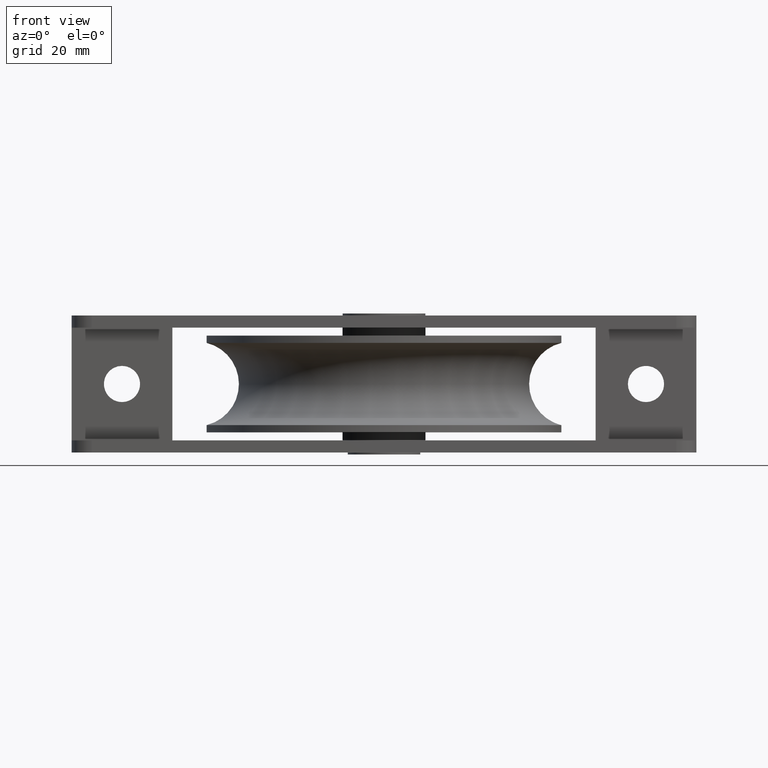
[diagram: clean part render]
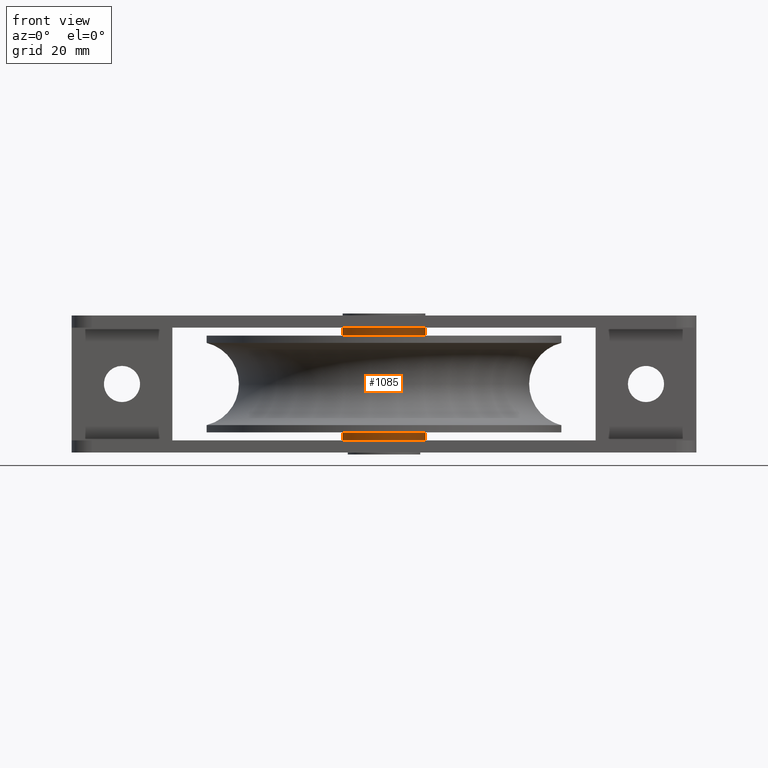
[diagram: same view with one face highlighted and labeled with its STEP entity id]
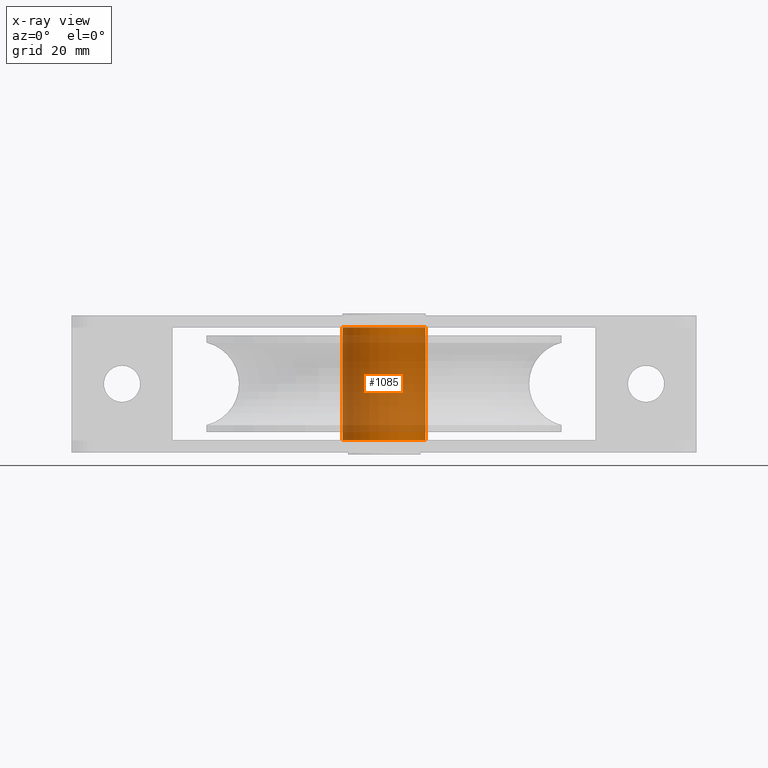
[diagram: x-ray of the same camera — body ghosted, the highlighted face saturated]
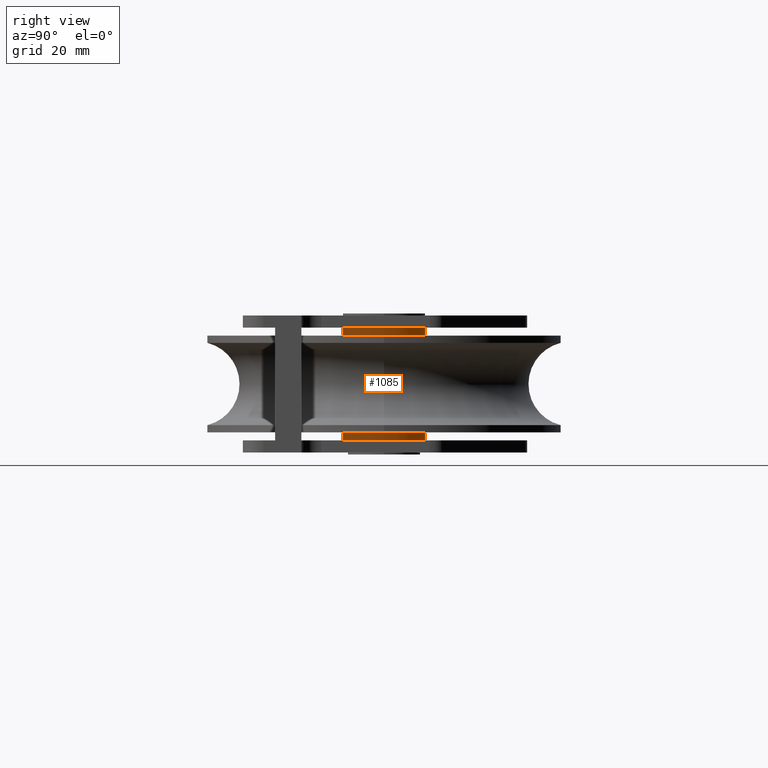
[diagram: same view with one face highlighted and labeled with its STEP entity id]
A machine part, front view. The second image highlights one B-rep face of the part: STEP entity #1085.
The next image is the same camera in x-ray: the body ghosted, the highlighted face saturated — about 86% of this face is hidden behind the body in this view.
A second angle (right view) of the same face is appended — the face is thin or edge-on in the first view.
In plain terms, the highlighted cylindrical surface (bore or boss wall) has radius 10.25 mm, axis along (0, 0, 1).
Its self-contained STEP definition (entity closure, byte-faithful):
#347 = DIRECTION ( 'NONE',  ( -1.000000000000000000, 0.0000000000000000000, 0.0000000000000000000 ) ) ;
#900 = EDGE_LOOP ( 'NONE', ( #3482 ) ) ;
#1085 = ADVANCED_FACE ( 'NONE', ( #5786, #4922 ), #10327, .T. ) ;
#1594 = CIRCLE ( 'NONE', #2815, 10.25000000000000000 ) ;
#2152 = CARTESIAN_POINT ( 'NONE',  ( 0.0000000000000000000, 0.0000000000000000000, -42.99137802864845500 ) ) ;
#2178 = CARTESIAN_POINT ( 'NONE',  ( -10.25000000000000000, 0.0000000000000000000, 13.99999999999999800 ) ) ;
#2260 = VERTEX_POINT ( 'NONE', #2178 ) ;
#2276 = CARTESIAN_POINT ( 'NONE',  ( 10.25000000000000000, 0.0000000000000000000, -13.99999999999999800 ) ) ;
#2815 = AXIS2_PLACEMENT_3D ( 'NONE', #7754, #8863, #14338 ) ;
#3482 = ORIENTED_EDGE ( 'NONE', *, *, #13073, .T. ) ;
#4357 = DIRECTION ( 'NONE',  ( 0.0000000000000000000, 0.0000000000000000000, 1.000000000000000000 ) ) ;
#4734 = DIRECTION ( 'NONE',  ( 0.0000000000000000000, 0.0000000000000000000, -1.000000000000000000 ) ) ;
#4922 = FACE_OUTER_BOUND ( 'NONE', #900, .T. ) ;
#5786 = FACE_OUTER_BOUND ( 'NONE', #6785, .T. ) ;
#6771 = EDGE_CURVE ( 'NONE', #2260, #2260, #12749, .T. ) ;
#6785 = EDGE_LOOP ( 'NONE', ( #8017 ) ) ;
#7033 = CARTESIAN_POINT ( 'NONE',  ( 0.0000000000000000000, 0.0000000000000000000, 13.99999999999999800 ) ) ;
#7317 = AXIS2_PLACEMENT_3D ( 'NONE', #7033, #4734, #347 ) ;
#7754 = CARTESIAN_POINT ( 'NONE',  ( 0.0000000000000000000, 0.0000000000000000000, -13.99999999999999800 ) ) ;
#7923 = AXIS2_PLACEMENT_3D ( 'NONE', #2152, #4357, #13599 ) ;
#8017 = ORIENTED_EDGE ( 'NONE', *, *, #6771, .T. ) ;
#8863 = DIRECTION ( 'NONE',  ( 0.0000000000000000000, 0.0000000000000000000, 1.000000000000000000 ) ) ;
#10327 = CYLINDRICAL_SURFACE ( 'NONE', #7923, 10.25000000000000000 ) ;
#12506 = VERTEX_POINT ( 'NONE', #2276 ) ;
#12749 = CIRCLE ( 'NONE', #7317, 10.25000000000000000 ) ;
#13073 = EDGE_CURVE ( 'NONE', #12506, #12506, #1594, .T. ) ;
#13599 = DIRECTION ( 'NONE',  ( 1.000000000000000000, 0.0000000000000000000, 0.0000000000000000000 ) ) ;
#14338 = DIRECTION ( 'NONE',  ( 1.000000000000000000, 0.0000000000000000000, 0.0000000000000000000 ) ) ;